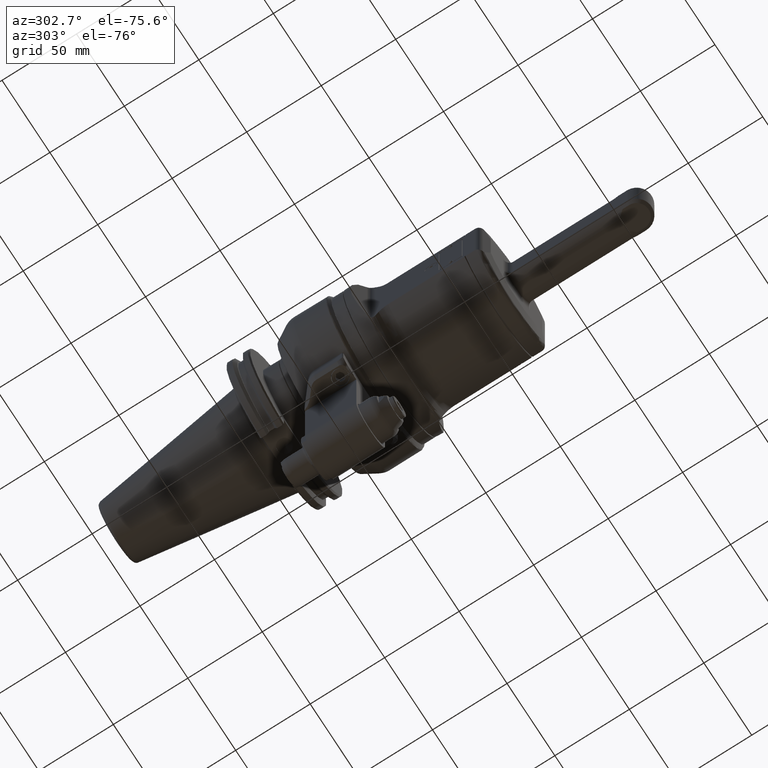
[diagram: clean part render]
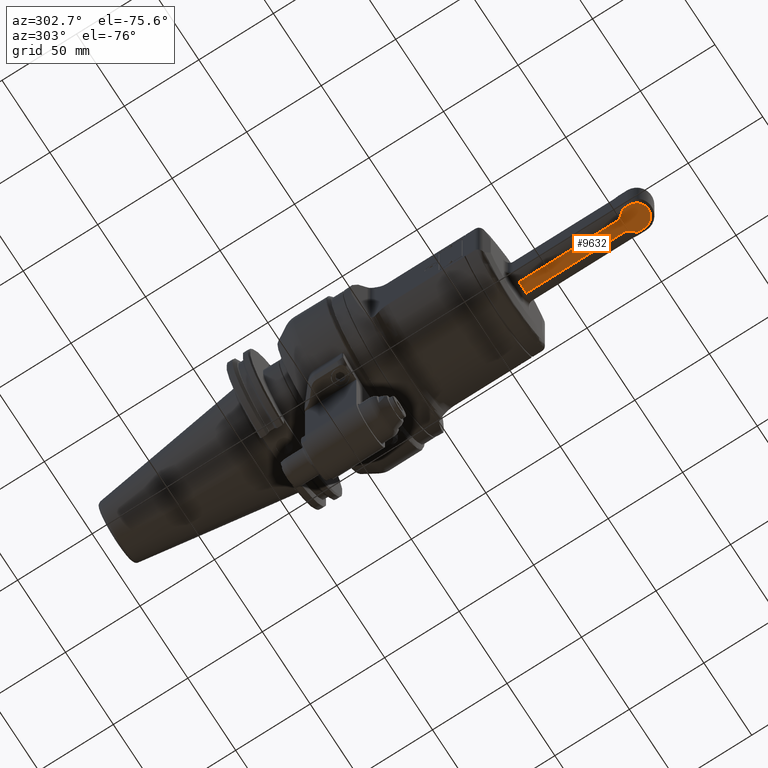
[diagram: same view with one face highlighted and labeled with its STEP entity id]
A machine part, auxiliary view. The second image highlights one B-rep face of the part: STEP entity #9632.
In plain terms, the highlighted planar face has unit normal (0, -0, 1).
Its self-contained STEP definition (entity closure, byte-faithful):
#97=(
BOUNDED_CURVE()
B_SPLINE_CURVE(2,(#17932,#17933,#17934),.UNSPECIFIED.,.F.,.F.)
B_SPLINE_CURVE_WITH_KNOTS((3,3),(3.54284674906807,3.91474933357922),
 .UNSPECIFIED.)
CURVE()
GEOMETRIC_REPRESENTATION_ITEM()
RATIONAL_B_SPLINE_CURVE((1.19284745012715,1.17717114855556,1.15607863387178))
REPRESENTATION_ITEM('')
);
#98=(
BOUNDED_CURVE()
B_SPLINE_CURVE(2,(#17960,#17961,#17962),.UNSPECIFIED.,.F.,.F.)
B_SPLINE_CURVE_WITH_KNOTS((3,3),(1.01812744583215,1.39003003028942),
 .UNSPECIFIED.)
CURVE()
GEOMETRIC_REPRESENTATION_ITEM()
RATIONAL_B_SPLINE_CURVE((1.15607863387178,1.1771711485525,1.19284745012261))
REPRESENTATION_ITEM('')
);
#241=B_SPLINE_CURVE_WITH_KNOTS('',3,(#17936,#17937,#17938,#17939,#17940,
#17941,#17942,#17943,#17944,#17945),.UNSPECIFIED.,.F.,.F.,(4,2,2,2,4),(-3.52035571557052,
-3.46218350556818,-3.40401129556583,-3.23656453952349,-3.13873786123609),
 .UNSPECIFIED.);
#242=B_SPLINE_CURVE_WITH_KNOTS('',3,(#17950,#17951,#17952,#17953,#17954,
#17955,#17956,#17957,#17958,#17959),.UNSPECIFIED.,.F.,.F.,(4,2,2,2,4),(-3.9019735699217,
-3.80414689161756,-3.63670013557521,-3.57852792557287,-3.52035571557052),
 .UNSPECIFIED.);
#935=LINE('',#17908,#1587);
#936=LINE('',#17926,#1588);
#937=LINE('',#17930,#1589);
#938=LINE('',#17946,#1590);
#939=LINE('',#17948,#1591);
#1587=VECTOR('',#13453,7.681145747869);
#1588=VECTOR('',#13456,4.319439876618);
#1589=VECTOR('',#13459,4.319439876618);
#1590=VECTOR('',#13460,66.18836509642);
#1591=VECTOR('',#13461,66.18836509642);
#2125=PLANE('',#10756);
#2650=FACE_OUTER_BOUND('',#3287,.T.);
#3287=EDGE_LOOP('',(#8745,#8746,#8747,#8748,#8749,#8750,#8751,#8752,#8753,
#8754));
#3856=CIRCLE('',#10757,8.);
#4741=VERTEX_POINT('',#17890);
#4742=VERTEX_POINT('',#17907);
#4743=VERTEX_POINT('',#17924);
#4744=VERTEX_POINT('',#17925);
#4745=VERTEX_POINT('',#17927);
#4746=VERTEX_POINT('',#17929);
#4747=VERTEX_POINT('',#17931);
#4748=VERTEX_POINT('',#17935);
#4749=VERTEX_POINT('',#17947);
#4750=VERTEX_POINT('',#17949);
#6097=EDGE_CURVE('',#4741,#4742,#935,.T.);
#6099=EDGE_CURVE('',#4743,#4744,#936,.T.);
#6100=EDGE_CURVE('',#4744,#4745,#3856,.T.);
#6101=EDGE_CURVE('',#4745,#4746,#937,.T.);
#6102=EDGE_CURVE('',#4747,#4746,#97,.T.);
#6103=EDGE_CURVE('',#4748,#4747,#241,.T.);
#6104=EDGE_CURVE('',#4742,#4748,#938,.T.);
#6105=EDGE_CURVE('',#4749,#4741,#939,.T.);
#6106=EDGE_CURVE('',#4750,#4749,#242,.T.);
#6107=EDGE_CURVE('',#4743,#4750,#98,.T.);
#8745=ORIENTED_EDGE('',*,*,#6099,.T.);
#8746=ORIENTED_EDGE('',*,*,#6100,.T.);
#8747=ORIENTED_EDGE('',*,*,#6101,.T.);
#8748=ORIENTED_EDGE('',*,*,#6102,.F.);
#8749=ORIENTED_EDGE('',*,*,#6103,.F.);
#8750=ORIENTED_EDGE('',*,*,#6104,.F.);
#8751=ORIENTED_EDGE('',*,*,#6097,.F.);
#8752=ORIENTED_EDGE('',*,*,#6105,.F.);
#8753=ORIENTED_EDGE('',*,*,#6106,.F.);
#8754=ORIENTED_EDGE('',*,*,#6107,.F.);
#9632=ADVANCED_FACE('',(#2650),#2125,.F.);
#10756=AXIS2_PLACEMENT_3D('',#17923,#13454,#13455);
#10757=AXIS2_PLACEMENT_3D('',#17928,#13457,#13458);
#13453=DIRECTION('',(0.,0.,-1.));
#13454=DIRECTION('center_axis',(0.,-1.,0.));
#13455=DIRECTION('ref_axis',(-1.,0.,0.));
#13456=DIRECTION('',(1.,-1.315990509985E-14,2.63198101997E-14));
#13457=DIRECTION('center_axis',(0.,1.,0.));
#13458=DIRECTION('ref_axis',(-1.06581410364E-14,0.,1.));
#13459=DIRECTION('',(-1.,1.315990509985E-14,2.611418668252E-14));
#13460=DIRECTION('',(1.,0.,0.));
#13461=DIRECTION('',(-1.,0.,0.));
#17890=CARTESIAN_POINT('',(85.,14.5,3.840572873934));
#17907=CARTESIAN_POINT('',(85.,14.5,-3.840572873934));
#17908=CARTESIAN_POINT('',(85.,14.5,3.840572873934));
#17923=CARTESIAN_POINT('Origin',(86.5435,14.5,0.));
#17924=CARTESIAN_POINT('',(157.2390601234,14.5,8.));
#17925=CARTESIAN_POINT('',(161.5585,14.5,8.));
#17926=CARTESIAN_POINT('',(157.2390601234,14.5,8.));
#17927=CARTESIAN_POINT('',(161.5585,14.5,-8.));
#17928=CARTESIAN_POINT('Origin',(161.5585,14.5,0.));
#17929=CARTESIAN_POINT('',(157.2390601234,14.5,-8.));
#17930=CARTESIAN_POINT('',(161.5585,14.5,-8.));
#17931=CARTESIAN_POINT('',(154.6085665297,14.5,-5.762457094251));
#17932=CARTESIAN_POINT('Ctrl Pts',(154.608566529488,14.5,-5.76245709408792));
#17933=CARTESIAN_POINT('Ctrl Pts',(155.709976427959,14.5,-6.84792578456759));
#17934=CARTESIAN_POINT('Ctrl Pts',(157.239060123311,14.5,-7.99999999996646));
#17935=CARTESIAN_POINT('',(151.1883650964,14.5,-3.840572873934));
#17936=CARTESIAN_POINT('Ctrl Pts',(151.1883650964,14.5,-3.8405728739343));
#17937=CARTESIAN_POINT('Ctrl Pts',(151.382272463074,14.5,-3.8405728739343));
#17938=CARTESIAN_POINT('Ctrl Pts',(151.593096807829,14.5,-3.86449708776915));
#17939=CARTESIAN_POINT('Ctrl Pts',(152.004272893106,14.5,-3.96100075022307));
#17940=CARTESIAN_POINT('Ctrl Pts',(152.204799099535,14.5,-4.03283533048175));
#17941=CARTESIAN_POINT('Ctrl Pts',(152.892961712065,14.5,-4.33620194996439));
#17942=CARTESIAN_POINT('Ctrl Pts',(153.438874097367,14.5,-4.72426679676135));
#17943=CARTESIAN_POINT('Ctrl Pts',(154.115905312372,14.5,-5.29305284336484));
#17944=CARTESIAN_POINT('Ctrl Pts',(154.363727147086,14.5,-5.52116138377203));
#17945=CARTESIAN_POINT('Ctrl Pts',(154.608566529683,14.5,-5.76245709426873));
#17946=CARTESIAN_POINT('',(85.,14.5,-3.840572873934));
#17947=CARTESIAN_POINT('',(151.1883650964,14.5,3.840572873934));
#17948=CARTESIAN_POINT('',(151.1883650964,14.5,3.840572873934));
#17949=CARTESIAN_POINT('',(154.6085665298,14.5,5.762457094401));
#17950=CARTESIAN_POINT('Ctrl Pts',(154.608566529808,14.5,5.76245709439264));
#17951=CARTESIAN_POINT('Ctrl Pts',(154.363727147171,14.5,5.5211613838501));
#17952=CARTESIAN_POINT('Ctrl Pts',(154.115905312414,14.5,5.29305284340074));
#17953=CARTESIAN_POINT('Ctrl Pts',(153.438874097367,14.5,4.72426679676135));
#17954=CARTESIAN_POINT('Ctrl Pts',(152.892961712065,14.5,4.33620194996439));
#17955=CARTESIAN_POINT('Ctrl Pts',(152.204799099535,14.5,4.03283533048175));
#17956=CARTESIAN_POINT('Ctrl Pts',(152.004272893106,14.5,3.96100075022307));
#17957=CARTESIAN_POINT('Ctrl Pts',(151.593096807829,14.5,3.86449708776915));
#17958=CARTESIAN_POINT('Ctrl Pts',(151.382272463074,14.5,3.8405728739343));
#17959=CARTESIAN_POINT('Ctrl Pts',(151.1883650964,14.5,3.8405728739343));
#17960=CARTESIAN_POINT('Ctrl Pts',(157.239060123311,14.5,7.99999999996647));
#17961=CARTESIAN_POINT('Ctrl Pts',(155.709976428177,14.5,6.84792578473152));
#17962=CARTESIAN_POINT('Ctrl Pts',(154.608566529803,14.5,5.76245709439831));